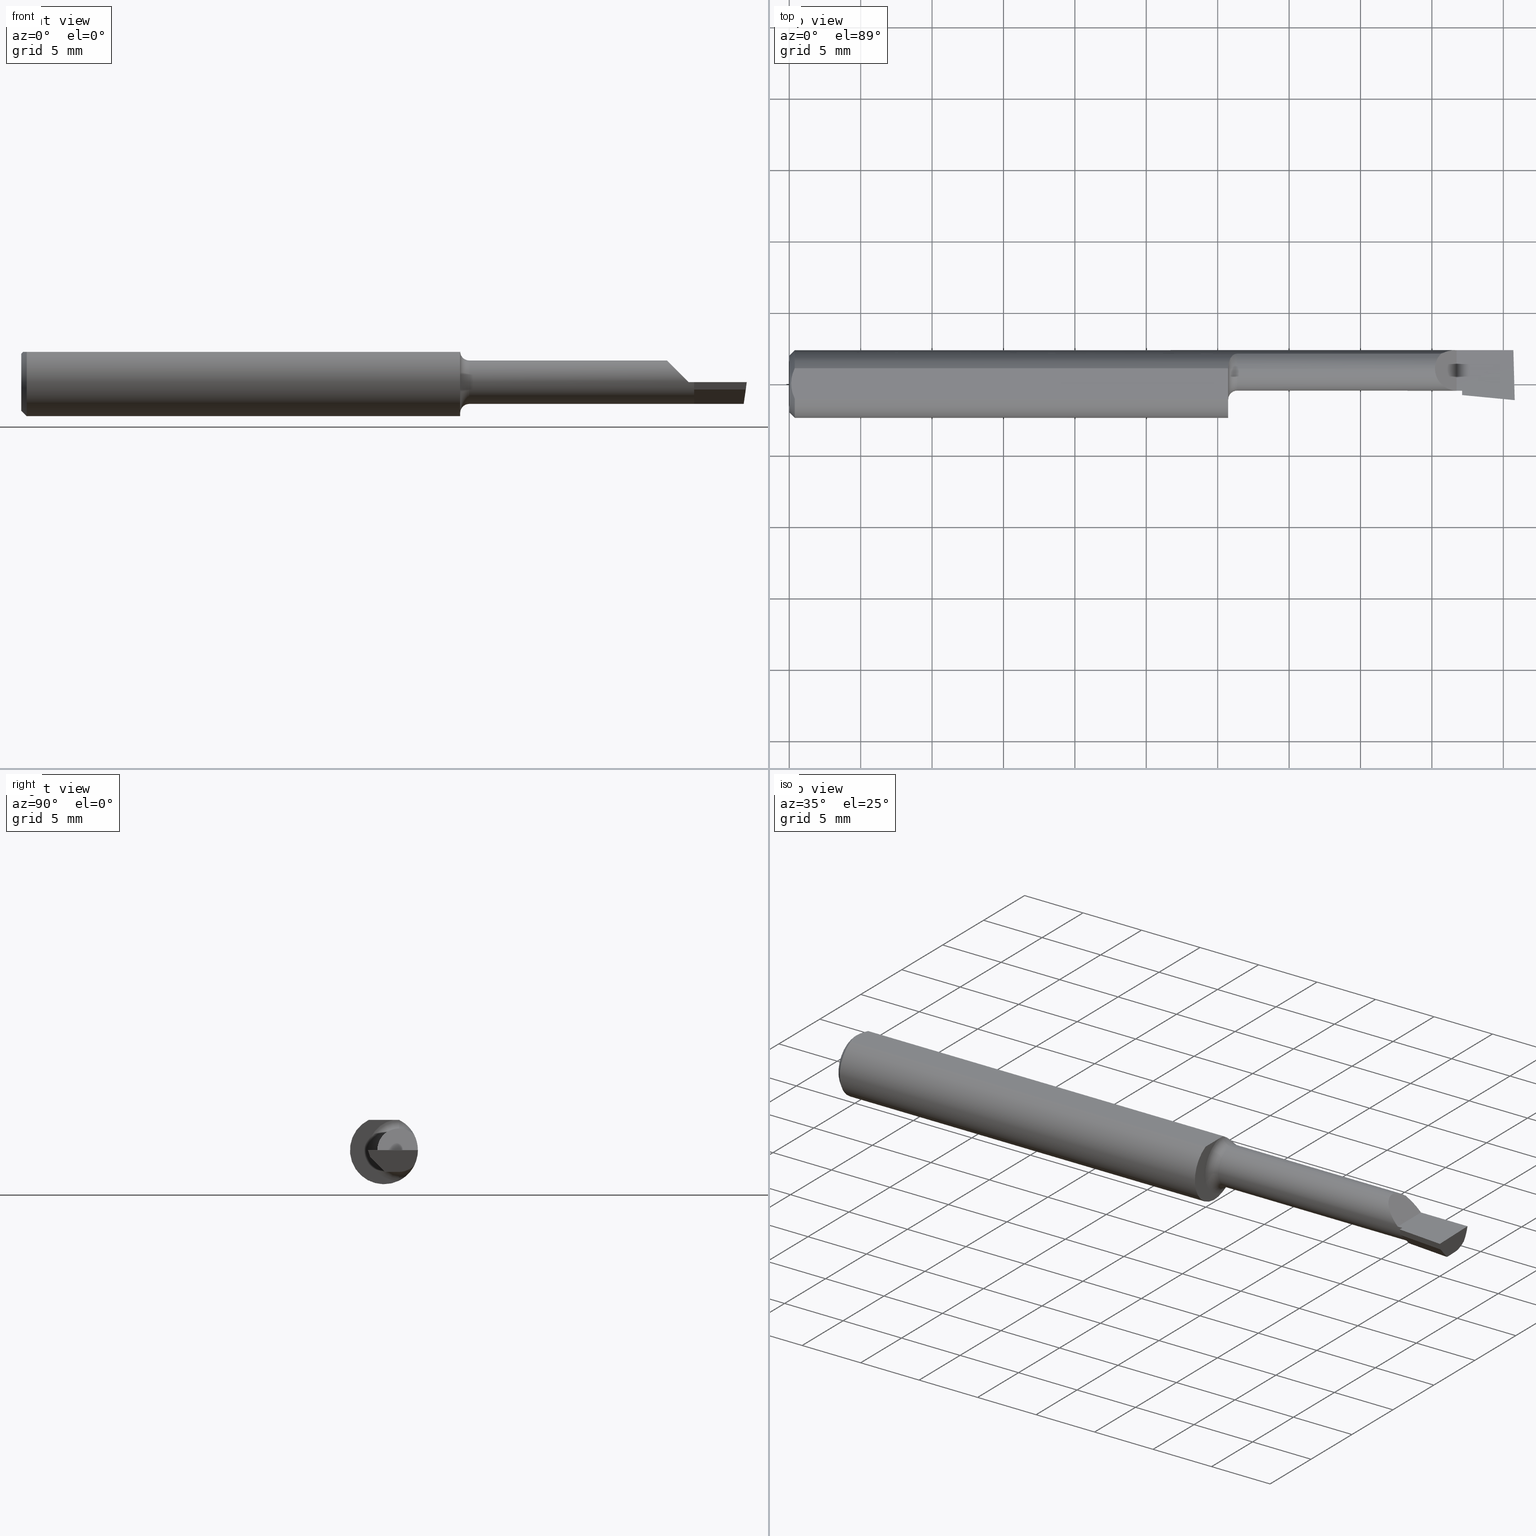
[diagram: canonical four-view strip — front | top / right | iso, engineering-drawing reading convention]
A machine part, canonical four-view strip (front | top / right | iso — engineering-drawing reading convention). The complete STEP part file that produces these views, byte-faithful:
ISO-10303-21;
HEADER;
FILE_DESCRIPTION (( 'STEP AP203' ),
    '1' );
FILE_NAME ('211914-LHB140750.STEP',
    '2024-08-23T16:21:57',
    ( '' ),
    ( '' ),
    'SwSTEP 2.0',
    'SolidWorks 2024',
    '' );
FILE_SCHEMA (( 'CONFIG_CONTROL_DESIGN' ));
ENDSEC;

DATA;
#1 = CARTESIAN_POINT ( 'NONE',  ( 1.234999999999999876, 0.04150000000000001604, 0.000000000000000000 ) ) ;
#2 = CARTESIAN_POINT ( 'NONE',  ( 1.213721006865827290, 0.06478644025684748842, 0.06776242552123297458 ) ) ;
#3 = ORIENTED_EDGE ( 'NONE', *, *, #233, .F. ) ;
#4 = CARTESIAN_POINT ( 'NONE',  ( 1.840000000000000080, -0.01840000000000013847, 1.959434878635766031E-17 ) ) ;
#5 = CARTESIAN_POINT ( 'NONE',  ( 0.000000000000000000, 0.000000000000000000, 0.000000000000000000 ) ) ;
#6 = EDGE_CURVE ( 'NONE', #421, #294, #569, .T. ) ;
#7 = CLOSED_SHELL ( 'NONE', ( #523, #177, #120, #675, #688, #181, #156, #393, #622, #424, #615, #81, #208, #570, #278, #218, #401, #17, #550 ) ) ;
#8 = ORIENTED_EDGE ( 'NONE', *, *, #196, .T. ) ;
#9 = PLANE ( 'NONE',  #29 ) ;
#10 = CARTESIAN_POINT ( 'NONE',  ( 1.210020127471513218, 0.04150000000000002298, -0.08389702020930182857 ) ) ;
#11 = ORIENTED_EDGE ( 'NONE', *, *, #283, .F. ) ;
#12 = CARTESIAN_POINT ( 'NONE',  ( 1.810264301876177706, 0.09002356847881784474, 0.02973569812382189162 ) ) ;
#13 = CARTESIAN_POINT ( 'NONE',  ( 1.210033712670300243, 0.04209513035969836975, 0.08360000000000000764 ) ) ;
#14 = ORIENTED_EDGE ( 'NONE', *, *, #377, .T. ) ;
#15 = PERSON_AND_ORGANIZATION ( #472, #88 ) ;
#16 = CARTESIAN_POINT ( 'NONE',  ( 0.01499999999999999598, 0.000000000000000000, 0.000000000000000000 ) ) ;
#17 = ADVANCED_FACE ( 'NONE', ( #262 ), #686, .F. ) ;
#18 = ORIENTED_EDGE ( 'NONE', *, *, #151, .F. ) ;
#19 = CARTESIAN_POINT ( 'NONE',  ( 1.796877448822106427, 0.08307469879518060429, 0.04312255117789316750 ) ) ;
#20 = EDGE_CURVE ( 'NONE', #174, #63, #630, .T. ) ;
#21 = ORIENTED_EDGE ( 'NONE', *, *, #20, .F. ) ;
#22 = APPROVAL_STATUS ( 'not_yet_approved' ) ;
#23 = CARTESIAN_POINT ( 'NONE',  ( 1.234999999999999876, 0.08307469879518031286, -0.04312255117789348668 ) ) ;
#24 = ORIENTED_EDGE ( 'NONE', *, *, #47, .F. ) ;
#25 = PERSON_AND_ORGANIZATION ( #472, #88 ) ;
#26 = CYLINDRICAL_SURFACE ( 'NONE', #152, 0.05990000000000003655 ) ;
#27 = VERTEX_POINT ( 'NONE', #529 ) ;
#28 = AXIS2_PLACEMENT_3D ( 'NONE', #92, #51, #624 ) ;
#29 = AXIS2_PLACEMENT_3D ( 'NONE', #121, #112, #491 ) ;
#30 = COORDINATED_UNIVERSAL_TIME_OFFSET ( 8, 0, .BEHIND. ) ;
#31 = CARTESIAN_POINT ( 'NONE',  ( 1.854999999999999982, 0.01528802250680429305, -0.05989999999999998104 ) ) ;
#32 = ORIENTED_EDGE ( 'NONE', *, *, #327, .F. ) ;
#33 = EDGE_CURVE ( 'NONE', #671, #87, #301, .T. ) ;
#34 = CARTESIAN_POINT ( 'NONE',  ( 0.000000000000000000, 0.04150000000000001604, -0.05990000000000003655 ) ) ;
#35 = VERTEX_POINT ( 'NONE', #689 ) ;
#36 = CARTESIAN_POINT ( 'NONE',  ( 1.780099999999999349, 0.006411392386148373826, 0.05990000000000003655 ) ) ;
#37 = CARTESIAN_POINT ( 'NONE',  ( 1.234999999999999876, 0.04150000000000000216, 0.000000000000000000 ) ) ;
#38 = B_SPLINE_CURVE_WITH_KNOTS ( 'NONE', 3,
 ( #10, #270, #443, #650 ),
 .UNSPECIFIED., .F., .F.,
 ( 4, 4 ),
 ( 0.001735506710063781152, 0.001793010945052093703 ),
 .UNSPECIFIED. ) ;
#39 = DIRECTION ( 'NONE',  ( 1.000000000000000000, 0.000000000000000000, 0.000000000000000000 ) ) ;
#40 = CC_DESIGN_APPROVAL ( #115, ( #640 ) ) ;
#41 = CARTESIAN_POINT ( 'NONE',  ( 1.234999999999999876, 0.04150000000000001604, 0.000000000000000000 ) ) ;
#42 = CARTESIAN_POINT ( 'NONE',  ( 5.659797890829564224E-31, -0.01840000000000002744, 1.030335658007946637E-15 ) ) ;
#43 = VERTEX_POINT ( 'NONE', #203 ) ;
#44 = ORIENTED_EDGE ( 'NONE', *, *, #455, .F. ) ;
#45 = CARTESIAN_POINT ( 'NONE',  ( 1.991661343449129040, 0.002129031820690719789, -0.05989999999999997410 ) ) ;
#46 = ORIENTED_EDGE ( 'NONE', *, *, #144, .F. ) ;
#47 = EDGE_CURVE ( 'NONE', #411, #426, #118, .T. ) ;
#48 = CARTESIAN_POINT ( 'NONE',  ( 0.009539353699420828961, -0.02875682547511369466, 0.08360000000000000764 ) ) ;
#49 = VECTOR ( 'NONE', #365, 39.37007874015748854 ) ;
#50 = AXIS2_PLACEMENT_3D ( 'NONE', #73, #397, #556 ) ;
#51 = DIRECTION ( 'NONE',  ( -1.000000000000000000, -0.000000000000000000, -0.000000000000000000 ) ) ;
#52 = EDGE_CURVE ( 'NONE', #63, #437, #683, .T. ) ;
#53 = FACE_OUTER_BOUND ( 'NONE', #55, .T. ) ;
#54 = PLANE ( 'NONE',  #319 ) ;
#55 = EDGE_LOOP ( 'NONE', ( #567, #490, #482, #326 ) ) ;
#56 = EDGE_CURVE ( 'NONE', #253, #98, #246, .T. ) ;
#57 = LINE ( 'NONE', #67, #248 ) ;
#58 = LINE ( 'NONE', #277, #188 ) ;
#59 = ORIENTED_EDGE ( 'NONE', *, *, #369, .T. ) ;
#60 = PLANE ( 'NONE',  #500 ) ;
#61 = FACE_OUTER_BOUND ( 'NONE', #389, .T. ) ;
#62 = CONICAL_SURFACE ( 'NONE', #447, 0.09360000000000001652, 0.7853981633974601584 ) ;
#63 = VERTEX_POINT ( 'NONE', #419 ) ;
#64 = APPLICATION_CONTEXT ( 'configuration controlled 3d designs of mechanical parts and assemblies' ) ;
#65 = CARTESIAN_POINT ( 'NONE',  ( 1.780099999999999349, 0.04150000000000000216, 0.05990000000000003655 ) ) ;
#66 = EDGE_LOOP ( 'NONE', ( #513, #182, #588 ) ) ;
#67 = CARTESIAN_POINT ( 'NONE',  ( 1.994878008415317039, -0.02004803678706337453, -0.03775007964733236021 ) ) ;
#68 = EDGE_CURVE ( 'NONE', #437, #609, #517, .T. ) ;
#69 = DIRECTION ( 'NONE',  ( 0.000000000000000000, 0.000000000000000000, -1.000000000000000000 ) ) ;
#70 = ORIENTED_EDGE ( 'NONE', *, *, #406, .T. ) ;
#71 =( BOUNDED_CURVE ( )  B_SPLINE_CURVE ( 3, ( #101, #153, #99, #470 ),
 .UNSPECIFIED., .F., .F. ) 
 B_SPLINE_CURVE_WITH_KNOTS ( ( 4, 4 ),
 ( 4.934903206476700888, 5.413699339028699598 ),
 .UNSPECIFIED. ) 
 CURVE ( )  GEOMETRIC_REPRESENTATION_ITEM ( )  RATIONAL_B_SPLINE_CURVE ( ( 1.000000000000000000, 0.9809872534005955602, 0.9809872534005955602, 1.000000000000000000 ) ) 
 REPRESENTATION_ITEM ( '' )  );
#72 = EDGE_CURVE ( 'NONE', #98, #253, #76, .T. ) ;
#73 = CARTESIAN_POINT ( 'NONE',  ( 0.000000000000000000, 0.000000000000000000, 0.000000000000000000 ) ) ;
#74 = CARTESIAN_POINT ( 'NONE',  ( 0.01499999999999999598, 0.04209513035969837669, 0.08360000000000000764 ) ) ;
#75 = ORIENTED_EDGE ( 'NONE', *, *, #585, .T. ) ;
#76 = CIRCLE ( 'NONE', #445, 0.07859999999999965625 ) ;
#77 = AXIS2_PLACEMENT_3D ( 'NONE', #1, #230, #386 ) ;
#78 = DATE_AND_TIME ( #552, #674 ) ;
#79 = DIRECTION ( 'NONE',  ( -1.000000000000000000, -0.000000000000000000, -0.000000000000000000 ) ) ;
#80 = ORIENTED_EDGE ( 'NONE', *, *, #259, .T. ) ;
#81 = ADVANCED_FACE ( 'NONE', ( #368 ), #420, .F. ) ;
#82 = DIRECTION ( 'NONE',  ( -1.000000000000000000, -0.000000000000000000, -0.000000000000000000 ) ) ;
#83 = ORIENTED_EDGE ( 'NONE', *, *, #6, .T. ) ;
#84 = PERSON_AND_ORGANIZATION_ROLE ( 'classification_officer' ) ;
#85 = DIRECTION ( 'NONE',  ( -1.000000000000000000, -0.000000000000000000, -0.000000000000000000 ) ) ;
#86 = EDGE_CURVE ( 'NONE', #643, #192, #345, .T. ) ;
#87 = VERTEX_POINT ( 'NONE', #628 ) ;
#88 = ORGANIZATION ( 'UNSPECIFIED', 'UNSPECIFIED', '' ) ;
#89 = CARTESIAN_POINT ( 'NONE',  ( 1.210020127471513218, 0.04150000000000002298, -0.08389702020930182857 ) ) ;
#90 = ORIENTED_EDGE ( 'NONE', *, *, #33, .F. ) ;
#91 = FACE_OUTER_BOUND ( 'NONE', #546, .T. ) ;
#92 = CARTESIAN_POINT ( 'NONE',  ( 1.234999999999999876, 0.04150000000000000216, 0.000000000000000000 ) ) ;
#93 = CARTESIAN_POINT ( 'NONE',  ( 1.840000000000000080, 0.09359999999999982223, 1.959434878635766031E-17 ) ) ;
#94 = LINE ( 'NONE', #149, #485 ) ;
#95 = AXIS2_PLACEMENT_3D ( 'NONE', #16, #117, #593 ) ;
#96 = CARTESIAN_POINT ( 'NONE',  ( 1.234999999999999876, 0.08307469879517995204, 0.04312255117789382669 ) ) ;
#97 = CARTESIAN_POINT ( 'NONE',  ( 1.210033822879743814, 0.04159918775969423388, 0.08360000000000000764 ) ) ;
#98 = VERTEX_POINT ( 'NONE', #524 ) ;
#99 = CARTESIAN_POINT ( 'NONE',  ( 1.992878167367474918, 0.09002356847881788637, -0.02973569812382179794 ) ) ;
#100 = CARTESIAN_POINT ( 'NONE',  ( 0.000000000000000000, 0.04150000000000000216, 0.05990000000000003655 ) ) ;
#101 = CARTESIAN_POINT ( 'NONE',  ( 1.996303070958813874, 0.09359999999999991938, -6.619415695412894900E-17 ) ) ;
#102 = DIRECTION ( 'NONE',  ( -0.9953961983671787417, 0.09584575252022423109, -1.732874166575655028E-17 ) ) ;
#103 = EDGE_CURVE ( 'NONE', #497, #27, #146, .T. ) ;
#104 = ORIENTED_EDGE ( 'NONE', *, *, #377, .F. ) ;
#105 = LINE ( 'NONE', #641, #107 ) ;
#106 = VECTOR ( 'NONE', #207, 39.37007874015748143 ) ;
#107 = VECTOR ( 'NONE', #442, 39.37007874015748143 ) ;
#108 = CARTESIAN_POINT ( 'NONE',  ( 1.223723886093657010, 0.07921817987507871750, 0.04991299092652205088 ) ) ;
#109 = CARTESIAN_POINT ( 'NONE',  ( 1.840000000000000080, -0.2500000000000000555, 1.959434878635766031E-17 ) ) ;
#110 = DIRECTION ( 'NONE',  ( -1.000000000000000000, -0.000000000000000000, -0.000000000000000000 ) ) ;
#111 = VERTEX_POINT ( 'NONE', #159 ) ;
#112 = DIRECTION ( 'NONE',  ( 0.000000000000000000, -1.189000693621284344E-16, -1.000000000000000000 ) ) ;
#113 = CARTESIAN_POINT ( 'NONE',  ( 1.210661035553191267, 0.05185656404701165234, 0.07811662714583204881 ) ) ;
#114 = ORIENTED_EDGE ( 'NONE', *, *, #141, .T. ) ;
#115 = APPROVAL ( #613, 'UNSPECIFIED' ) ;
#116 = CARTESIAN_POINT ( 'NONE',  ( 1.796877448822106427, 0.08307469879518060429, 0.04312255117789316750 ) ) ;
#117 = DIRECTION ( 'NONE',  ( 1.000000000000000000, 0.000000000000000000, 0.000000000000000000 ) ) ;
#118 = CIRCLE ( 'NONE', #538, 0.05990000000000008512 ) ;
#119 = ORIENTED_EDGE ( 'NONE', *, *, #56, .F. ) ;
#120 = ADVANCED_FACE ( 'NONE', ( #371 ), #186, .F. ) ;
#121 = CARTESIAN_POINT ( 'NONE',  ( 2.000000000000000000, 0.1436000000000000332, 0.08359999999999999376 ) ) ;
#122 = CARTESIAN_POINT ( 'NONE',  ( 1.219277238843510691, 0.07518688180261705323, 0.05595855205958146644 ) ) ;
#123 = ORIENTED_EDGE ( 'NONE', *, *, #124, .F. ) ;
#124 = EDGE_CURVE ( 'NONE', #294, #35, #94, .T. ) ;
#125 = ADVANCED_BREP_SHAPE_REPRESENTATION ( '211914-LHB140750', ( #225, #50 ), #387 ) ;
#126 = CALENDAR_DATE ( 2024, 23, 8 ) ;
#127 = CARTESIAN_POINT ( 'NONE',  ( 0.009492654797564338900, 0.02859466010166627700, 0.08360000000000000764 ) ) ;
#128 = ORIENTED_EDGE ( 'NONE', *, *, #449, .T. ) ;
#129 =( NAMED_UNIT ( * ) SI_UNIT ( $, .STERADIAN. ) SOLID_ANGLE_UNIT ( ) );
#130 = CARTESIAN_POINT ( 'NONE',  ( 1.217076397983111180, 0.07187891021191449015, -0.06019546731975726483 ) ) ;
#131 = PRODUCT_DEFINITION_SHAPE ( 'NONE', 'NONE',  #364 ) ;
#132 = ORIENTED_EDGE ( 'NONE', *, *, #6, .F. ) ;
#133 = AXIS2_PLACEMENT_3D ( 'NONE', #526, #263, #473 ) ;
#134 = FACE_OUTER_BOUND ( 'NONE', #135, .T. ) ;
#135 = EDGE_LOOP ( 'NONE', ( #247, #542, #591, #616 ) ) ;
#136 = APPROVAL_DATE_TIME ( #402, #245 ) ;
#137 = CARTESIAN_POINT ( 'NONE',  ( 1.209999999999999742, 0.02916612216507176447, 0.08360000000000000764 ) ) ;
#138 = ORIENTED_EDGE ( 'NONE', *, *, #648, .F. ) ;
#139 = CARTESIAN_POINT ( 'NONE',  ( 1.225354605856553203, 0.08039319987159025682, -0.04797642756495561905 ) ) ;
#140 = ORIENTED_EDGE ( 'NONE', *, *, #477, .T. ) ;
#141 = EDGE_CURVE ( 'NONE', #450, #27, #626, .T. ) ;
#142 = CARTESIAN_POINT ( 'NONE',  ( 1.234999999999999876, 0.04150000000000002298, -0.05990000000000008512 ) ) ;
#143 = VERTEX_POINT ( 'NONE', #496 ) ;
#144 = EDGE_CURVE ( 'NONE', #294, #643, #544, .T. ) ;
#145 = DIRECTION ( 'NONE',  ( -1.000000000000000000, 0.000000000000000000, 5.493159289247768307E-16 ) ) ;
#146 = LINE ( 'NONE', #681, #617 ) ;
#147 = CARTESIAN_POINT ( 'NONE',  ( 0.005000000000000236026, 1.025183009042025117E-17, 0.08360000000000000764 ) ) ;
#148 = APPLICATION_CONTEXT ( 'configuration controlled 3d designs of mechanical parts and assemblies' ) ;
#149 = CARTESIAN_POINT ( 'NONE',  ( 1.854999999999999982, -0.04216482923734049537, -0.001704712032923590441 ) ) ;
#150 = ORIENTED_EDGE ( 'NONE', *, *, #317, .T. ) ;
#151 = EDGE_CURVE ( 'NONE', #143, #302, #38, .T. ) ;
#152 = AXIS2_PLACEMENT_3D ( 'NONE', #511, #82, #557 ) ;
#153 = CARTESIAN_POINT ( 'NONE',  ( 1.994517249006380943, 0.09360000000000004428, -0.01508292493422510976 ) ) ;
#154 = CARTESIAN_POINT ( 'NONE',  ( 0.01499999999999999598, 0.000000000000000000, 0.000000000000000000 ) ) ;
#155 = DIRECTION ( 'NONE',  ( 0.000000000000000000, -0.3019700370129919098, 0.9533174165755979867 ) ) ;
#156 = ADVANCED_FACE ( 'NONE', ( #481 ), #475, .T. ) ;
#157 = DIRECTION ( 'NONE',  ( 0.000000000000000000, 0.000000000000000000, 1.000000000000000000 ) ) ;
#158 = DIRECTION ( 'NONE',  ( 1.000000000000000000, 0.000000000000000000, 0.000000000000000000 ) ) ;
#159 = CARTESIAN_POINT ( 'NONE',  ( 1.209999999999999964, 0.02669966216601753206, 0.08360000000000000764 ) ) ;
#160 = AXIS2_PLACEMENT_3D ( 'NONE', #403, #85, #352 ) ;
#161 = CC_DESIGN_APPROVAL ( #417, ( #364 ) ) ;
#162 = ORIENTED_EDGE ( 'NONE', *, *, #632, .T. ) ;
#163 = CARTESIAN_POINT ( 'NONE',  ( 1.840000000000000080, -0.2500000000000000555, 1.959434878635766031E-17 ) ) ;
#164 = DIRECTION ( 'NONE',  ( -0.000000000000000000, 1.000000000000000000, -2.155470096071024451E-16 ) ) ;
#165 = VERTEX_POINT ( 'NONE', #587 ) ;
#166 = CC_DESIGN_DATE_AND_TIME_ASSIGNMENT ( #666, #663, ( #364 ) ) ;
#167 = DIRECTION ( 'NONE',  ( -0.000000000000000000, 1.000000000000000000, -0.000000000000000000 ) ) ;
#168 = CARTESIAN_POINT ( 'NONE',  ( 1.990606621161869816, 0.04149999999999999523, -0.05989999999999998798 ) ) ;
#169 = ORIENTED_EDGE ( 'NONE', *, *, #580, .T. ) ;
#170 = DIRECTION ( 'NONE',  ( 0.000000000000000000, 0.000000000000000000, -1.000000000000000000 ) ) ;
#171 = CARTESIAN_POINT ( 'NONE',  ( 1.854999999999999982, -0.01839999999999999969, 1.030335658007946243E-15 ) ) ;
#172 = EDGE_CURVE ( 'NONE', #605, #411, #483, .T. ) ;
#173 = CC_DESIGN_SECURITY_CLASSIFICATION ( #640, ( #553 ) ) ;
#174 = VERTEX_POINT ( 'NONE', #65 ) ;
#175 = APPROVAL_ROLE ( '' ) ;
#176 = CARTESIAN_POINT ( 'NONE',  ( 1.209999999999999964, -0.04340000000000008434, 0.000000000000000000 ) ) ;
#177 = ADVANCED_FACE ( 'NONE', ( #61 ), #383, .T. ) ;
#178 = VERTEX_POINT ( 'NONE', #280 ) ;
#179 = PERSON_AND_ORGANIZATION ( #472, #88 ) ;
#180 = DIRECTION ( 'NONE',  ( 0.000000000000000000, -0.3019700370129919098, 0.9533174165755979867 ) ) ;
#181 = ADVANCED_FACE ( 'NONE', ( #492 ), #439, .F. ) ;
#182 = ORIENTED_EDGE ( 'NONE', *, *, #355, .F. ) ;
#183 = B_SPLINE_CURVE_WITH_KNOTS ( 'NONE', 3,
 ( #23, #614, #554, #139, #608, #241, #130, #454, #354, #564, #501, #89 ),
 .UNSPECIFIED., .F., .F.,
 ( 4, 2, 2, 2, 2, 4 ),
 ( 1.963546462201886234E-07, 0.0002171101490734151924, 0.0004340239435006102288, 0.0008678515323550006809, 0.001301679121209391079, 0.001735506710063781152 ),
 .UNSPECIFIED. ) ;
#184 = PERSON_AND_ORGANIZATION ( #472, #88 ) ;
#185 = CYLINDRICAL_SURFACE ( 'NONE', #458, 0.09360000000000001652 ) ;
#186 = TOROIDAL_SURFACE ( 'NONE', #563, 0.08490000000000010039, 0.02499999999999986955 ) ;
#187 = ORIENTED_EDGE ( 'NONE', *, *, #198, .F. ) ;
#188 = VECTOR ( 'NONE', #489, 39.37007874015748143 ) ;
#189 = LOCAL_TIME ( 9, 21, 56.00000000000000000, #340 ) ;
#190 = COORDINATED_UNIVERSAL_TIME_OFFSET ( 8, 0, .BEHIND. ) ;
#191 = CARTESIAN_POINT ( 'NONE',  ( 1.780099999999999349, 0.05720488466913994929, 0.05990000000000002961 ) ) ;
#192 = VERTEX_POINT ( 'NONE', #171 ) ;
#193 = DATE_TIME_ROLE ( 'classification_date' ) ;
#194 = CARTESIAN_POINT ( 'NONE',  ( 0.005000000000000225618, 0.007308422719211825694, 0.08360000000000000764 ) ) ;
#195 = ORIENTED_EDGE ( 'NONE', *, *, #327, .T. ) ;
#196 = EDGE_CURVE ( 'NONE', #302, #165, #410, .T. ) ;
#197 = CARTESIAN_POINT ( 'NONE',  ( 2.000000000000000000, 0.04149999999999999523, -0.05989999999999998798 ) ) ;
#198 = EDGE_CURVE ( 'NONE', #605, #274, #545, .T. ) ;
#199 = ORIENTED_EDGE ( 'NONE', *, *, #684, .T. ) ;
#200 = AXIS2_PLACEMENT_3D ( 'NONE', #154, #527, #366 ) ;
#201 = CIRCLE ( 'NONE', #575, 0.02499999999999986955 ) ;
#202 = FACE_OUTER_BOUND ( 'NONE', #459, .T. ) ;
#203 = CARTESIAN_POINT ( 'NONE',  ( 1.996303070958813874, 0.09359999999999991938, -6.619415695412894900E-17 ) ) ;
#204 = CARTESIAN_POINT ( 'NONE',  ( 2.000000000000000000, -0.2500000000000000555, -6.829619984160658046E-17 ) ) ;
#205 = DIRECTION ( 'NONE',  ( 0.000000000000000000, 0.000000000000000000, 1.000000000000000000 ) ) ;
#206 = EDGE_CURVE ( 'NONE', #27, #437, #661, .T. ) ;
#207 = DIRECTION ( 'NONE',  ( -1.000000000000000000, -0.000000000000000000, -0.000000000000000000 ) ) ;
#208 = ADVANCED_FACE ( 'NONE', ( #285 ), #54, .F. ) ;
#209 = AXIS2_PLACEMENT_3D ( 'NONE', #349, #266, #155 ) ;
#210 = APPROVAL_PERSON_ORGANIZATION ( #405, #115, #175 ) ;
#211 = CARTESIAN_POINT ( 'NONE',  ( 0.000000000000000000, 0.04150000000000000216, 0.000000000000000000 ) ) ;
#212 = DIRECTION ( 'NONE',  ( -1.000000000000000000, -0.000000000000000000, -0.000000000000000000 ) ) ;
#213 =( BOUNDED_CURVE ( )  B_SPLINE_CURVE ( 3, ( #19, #300, #191, #504 ),
 .UNSPECIFIED., .F., .T. ) 
 B_SPLINE_CURVE_WITH_KNOTS ( ( 4, 4 ),
 ( 5.516060229395662873, 6.283185307179586232 ),
 .UNSPECIFIED. ) 
 CURVE ( )  GEOMETRIC_REPRESENTATION_ITEM ( )  RATIONAL_B_SPLINE_CURVE ( ( 1.000000000000000000, 0.9515582177473694836, 0.9515582177473694836, 1.000000000000000000 ) ) 
 REPRESENTATION_ITEM ( '' )  );
#214 = ORIENTED_EDGE ( 'NONE', *, *, #103, .F. ) ;
#215 = DIRECTION ( 'NONE',  ( 0.1199690778467074476, -0.3102690083707257407, 0.9430485474275739355 ) ) ;
#216 = CARTESIAN_POINT ( 'NONE',  ( 1.848806480742781089, -0.02350657842466757214, -0.02000000000000006981 ) ) ;
#217 =( BOUNDED_CURVE ( )  B_SPLINE_CURVE ( 3, ( #596, #12, #687, #427 ),
 .UNSPECIFIED., .F., .F. ) 
 B_SPLINE_CURVE_WITH_KNOTS ( ( 4, 4 ),
 ( 1.092000194242895628, 1.570796326794896558 ),
 .UNSPECIFIED. ) 
 CURVE ( )  GEOMETRIC_REPRESENTATION_ITEM ( )  RATIONAL_B_SPLINE_CURVE ( ( 1.000000000000000000, 0.9809872534005954492, 0.9809872534005954492, 1.000000000000000000 ) ) 
 REPRESENTATION_ITEM ( '' )  );
#218 = ADVANCED_FACE ( 'NONE', ( #430 ), #642, .F. ) ;
#219 = FACE_OUTER_BOUND ( 'NONE', #408, .T. ) ;
#220 = DIRECTION ( 'NONE',  ( -0.000000000000000000, 0.000000000000000000, 1.000000000000000000 ) ) ;
#221 = ORIENTED_EDGE ( 'NONE', *, *, #465, .F. ) ;
#222 = AXIS2_PLACEMENT_3D ( 'NONE', #5, #582, #69 ) ;
#223 = CC_DESIGN_PERSON_AND_ORGANIZATION_ASSIGNMENT ( #495, #84, ( #640 ) ) ;
#224 = CARTESIAN_POINT ( 'NONE',  ( 1.209999999999999964, 0.000000000000000000, 0.000000000000000000 ) ) ;
#225 = MANIFOLD_SOLID_BREP ( 'Extrude7', #7 ) ;
#226 = ORIENTED_EDGE ( 'NONE', *, *, #198, .T. ) ;
#227 = CARTESIAN_POINT ( 'NONE',  ( 1.234999999999999876, 0.04150000000000000216, 0.000000000000000000 ) ) ;
#228 = CARTESIAN_POINT ( 'NONE',  ( 1.217169981117899757, 0.07201923175886847106, 0.06001882546782391636 ) ) ;
#229 = EDGE_LOOP ( 'NONE', ( #80, #11, #298 ) ) ;
#230 = DIRECTION ( 'NONE',  ( -1.000000000000000000, -0.000000000000000000, -0.000000000000000000 ) ) ;
#231 = CARTESIAN_POINT ( 'NONE',  ( 0.000000000000000000, 0.04150000000000000216, 0.000000000000000000 ) ) ;
#232 = EDGE_LOOP ( 'NONE', ( #330, #456, #114, #214, #384, #679, #221 ) ) ;
#233 = EDGE_CURVE ( 'NONE', #444, #43, #58, .T. ) ;
#234 = CARTESIAN_POINT ( 'NONE',  ( 1.991479316373666597, 0.08307469879518067368, -0.04312255117789308423 ) ) ;
#235 = AXIS2_PLACEMENT_3D ( 'NONE', #216, #316, #425 ) ;
#236 = ORIENTED_EDGE ( 'NONE', *, *, #334, .T. ) ;
#237 = COORDINATED_UNIVERSAL_TIME_OFFSET ( 8, 0, .BEHIND. ) ;
#238 = CARTESIAN_POINT ( 'NONE',  ( 1.209999999999999964, 0.03946024096385525315, -0.08487549341873944220 ) ) ;
#239 = EDGE_LOOP ( 'NONE', ( #376, #128, #502, #452, #342, #8, #347, #90, #350, #282, #505, #639, #199 ) ) ;
#240 = CALENDAR_DATE ( 2024, 23, 8 ) ;
#241 = CARTESIAN_POINT ( 'NONE',  ( 1.219237437666585544, 0.07513599091568971822, -0.05602756047418890745 ) ) ;
#242 = ORIENTED_EDGE ( 'NONE', *, *, #449, .F. ) ;
#243 =( CONVERSION_BASED_UNIT ( 'INCH', #435 ) LENGTH_UNIT ( ) NAMED_UNIT ( #318 ) );
#244 = LINE ( 'NONE', #34, #652 ) ;
#245 = APPROVAL ( #446, 'UNSPECIFIED' ) ;
#246 = CIRCLE ( 'NONE', #256, 0.07859999999999965625 ) ;
#247 = ORIENTED_EDGE ( 'NONE', *, *, #455, .T. ) ;
#248 = VECTOR ( 'NONE', #589, 39.37007874015748854 ) ;
#249 = CALENDAR_DATE ( 2024, 23, 8 ) ;
#250 = CARTESIAN_POINT ( 'NONE',  ( 1.210033822879743814, 0.03903342675882736507, 0.08360000000000000764 ) ) ;
#251 = ORIENTED_EDGE ( 'NONE', *, *, #428, .T. ) ;
#252 = DIRECTION ( 'NONE',  ( 0.000000000000000000, 1.000000000000000000, -1.189000693621284344E-16 ) ) ;
#253 = VERTEX_POINT ( 'NONE', #664 ) ;
#254 = DIRECTION ( 'NONE',  ( -1.000000000000000000, -0.000000000000000000, -0.000000000000000000 ) ) ;
#255 = EDGE_LOOP ( 'NONE', ( #562, #464 ) ) ;
#256 = AXIS2_PLACEMENT_3D ( 'NONE', #576, #264, #205 ) ;
#257 = LOCAL_TIME ( 9, 21, 56.00000000000000000, #190 ) ;
#258 = CARTESIAN_POINT ( 'NONE',  ( 0.005000000000000227353, -0.007328888879231044290, 0.08360000000000000764 ) ) ;
#259 = EDGE_CURVE ( 'NONE', #302, #111, #265, .T. ) ;
#260 = DIRECTION ( 'NONE',  ( -1.000000000000000000, -0.000000000000000000, -0.000000000000000000 ) ) ;
#261 = CARTESIAN_POINT ( 'NONE',  ( 1.780099999999999349, 0.04150000000000000216, 0.05990000000000003655 ) ) ;
#262 = FACE_OUTER_BOUND ( 'NONE', #651, .T. ) ;
#263 = DIRECTION ( 'NONE',  ( -1.000000000000000000, -0.000000000000000000, -0.000000000000000000 ) ) ;
#264 = DIRECTION ( 'NONE',  ( -1.000000000000000000, -0.000000000000000000, -0.000000000000000000 ) ) ;
#265 = CIRCLE ( 'NONE', #160, 0.08490000000000010039 ) ;
#266 = DIRECTION ( 'NONE',  ( 0.09140971883575739476, 0.9493262270931227542, 0.3007057995042740073 ) ) ;
#267 = CARTESIAN_POINT ( 'NONE',  ( 1.854999999999999982, 0.04150000000000000216, 0.000000000000000000 ) ) ;
#268 = CARTESIAN_POINT ( 'NONE',  ( 1.991479316373666597, 0.08307469879518067368, -0.04312255117789308423 ) ) ;
#269 = EDGE_CURVE ( 'NONE', #609, #174, #213, .T. ) ;
#270 = CARTESIAN_POINT ( 'NONE',  ( 1.210006719116742735, 0.04082489400077262548, -0.08423096411932441685 ) ) ;
#271 = ORIENTED_EDGE ( 'NONE', *, *, #598, .T. ) ;
#272 = LINE ( 'NONE', #163, #685 ) ;
#273 = CARTESIAN_POINT ( 'NONE',  ( 1.854999999999999982, 0.04149999999999999523, -0.05989999999999998798 ) ) ;
#274 = VERTEX_POINT ( 'NONE', #293 ) ;
#275 = FACE_OUTER_BOUND ( 'NONE', #232, .T. ) ;
#276 = LOCAL_TIME ( 9, 21, 56.00000000000000000, #390 ) ;
#277 = CARTESIAN_POINT ( 'NONE',  ( 5.659797890829564224E-31, 0.09359999999999998876, 1.030335658007946637E-15 ) ) ;
#278 = ADVANCED_FACE ( 'NONE', ( #548 ), #26, .T. ) ;
#279 = ORIENTED_EDGE ( 'NONE', *, *, #477, .F. ) ;
#280 = CARTESIAN_POINT ( 'NONE',  ( 1.854999999999999982, -0.03043808801135738235, 1.030845766359249298E-15 ) ) ;
#281 = PRODUCT_RELATED_PRODUCT_CATEGORY ( 'detail', '', ( #594 ) ) ;
#282 = ORIENTED_EDGE ( 'NONE', *, *, #103, .T. ) ;
#283 = EDGE_CURVE ( 'NONE', #165, #111, #297, .T. ) ;
#284 = CARTESIAN_POINT ( 'NONE',  ( 0.01499999999999999598, 0.000000000000000000, 0.000000000000000000 ) ) ;
#285 = FACE_OUTER_BOUND ( 'NONE', #229, .T. ) ;
#286 = ORIENTED_EDGE ( 'NONE', *, *, #86, .F. ) ;
#287 = APPROVAL_DATE_TIME ( #547, #115 ) ;
#288 = CARTESIAN_POINT ( 'NONE',  ( 1.854999999999999982, -0.03134994704389333642, 0.002878732955684636195 ) ) ;
#289 = CIRCLE ( 'NONE', #133, 0.09360000000000001652 ) ;
#290 = AXIS2_PLACEMENT_3D ( 'NONE', #227, #592, #438 ) ;
#291 = ORIENTED_EDGE ( 'NONE', *, *, #428, .F. ) ;
#292 =( NAMED_UNIT ( * ) PLANE_ANGLE_UNIT ( ) SI_UNIT ( $, .RADIAN. ) );
#293 = CARTESIAN_POINT ( 'NONE',  ( 1.990606621161869816, 0.04149999999999999523, -0.05989999999999998798 ) ) ;
#294 = VERTEX_POINT ( 'NONE', #31 ) ;
#295 = PERSON_AND_ORGANIZATION_ROLE ( 'design_owner' ) ;
#296 = CC_DESIGN_PERSON_AND_ORGANIZATION_ASSIGNMENT ( #25, #607, ( #364 ) ) ;
#297 = LINE ( 'NONE', #398, #638 ) ;
#298 = ORIENTED_EDGE ( 'NONE', *, *, #196, .F. ) ;
#299 = DATE_AND_TIME ( #249, #346 ) ;
#300 = CARTESIAN_POINT ( 'NONE',  ( 1.785977184218891844, 0.07176861043311219546, 0.05402281578110754157 ) ) ;
#301 = CIRCLE ( 'NONE', #200, 0.09360000000000001652 ) ;
#302 = VERTEX_POINT ( 'NONE', #238 ) ;
#303 = LINE ( 'NONE', #514, #606 ) ;
#304 = ORIENTED_EDGE ( 'NONE', *, *, #33, .T. ) ;
#305 = CARTESIAN_POINT ( 'NONE',  ( 1.854999999999999982, -0.04043808801135707204, 0.000000000000000000 ) ) ;
#306 = EDGE_LOOP ( 'NONE', ( #18, #162, #599, #138, #484, #515 ) ) ;
#307 = EDGE_CURVE ( 'NONE', #111, #450, #577, .T. ) ;
#308 = CARTESIAN_POINT ( 'NONE',  ( 0.000000000000000000, -0.04209513035969835587, 0.08360000000000000764 ) ) ;
#309 = CARTESIAN_POINT ( 'NONE',  ( 1.996167230253800939, 0.001695164268982989400, -0.05989999999999998104 ) ) ;
#310 = VECTOR ( 'NONE', #409, 39.37007874015748854 ) ;
#311 = CARTESIAN_POINT ( 'NONE',  ( 1.210033822879743814, 0.04150000000000001604, 0.08360000000000000764 ) ) ;
#312 = CARTESIAN_POINT ( 'NONE',  ( 1.210033804492674614, 0.04179756391332097032, 0.08360000000000000764 ) ) ;
#313 = LINE ( 'NONE', #361, #310 ) ;
#314 = ORIENTED_EDGE ( 'NONE', *, *, #503, .F. ) ;
#315 = CARTESIAN_POINT ( 'NONE',  ( 0.01499999999999999944, -0.04209513035969835587, 0.08360000000000000764 ) ) ;
#316 = DIRECTION ( 'NONE',  ( 0.06836202603457079696, 0.7099667855717585185, 0.7009092642998474565 ) ) ;
#317 = EDGE_CURVE ( 'NONE', #253, #671, #507, .T. ) ;
#318 = DIMENSIONAL_EXPONENTS ( 1.000000000000000000, 0.000000000000000000, 0.000000000000000000, 0.000000000000000000, 0.000000000000000000, 0.000000000000000000, 0.000000000000000000 ) ;
#319 = AXIS2_PLACEMENT_3D ( 'NONE', #176, #322, #220 ) ;
#320 = APPROVAL_PERSON_ORGANIZATION ( #603, #417, #343 ) ;
#321 = CARTESIAN_POINT ( 'NONE',  ( 1.854999999999999982, 0.04149999999999999523, -0.05990000000000000185 ) ) ;
#322 = DIRECTION ( 'NONE',  ( -1.000000000000000000, 0.000000000000000000, -0.000000000000000000 ) ) ;
#323 = ORIENTED_EDGE ( 'NONE', *, *, #68, .F. ) ;
#324 = CARTESIAN_POINT ( 'NONE',  ( 1.997455717880613157, -0.03781987198395966171, -0.02000000000000006981 ) ) ;
#325 = CARTESIAN_POINT ( 'NONE',  ( 1.990185897653016234, 0.05720488466914001868, -0.05990000000000005043 ) ) ;
#326 = ORIENTED_EDGE ( 'NONE', *, *, #206, .F. ) ;
#327 = EDGE_CURVE ( 'NONE', #643, #426, #244, .T. ) ;
#328 = LINE ( 'NONE', #540, #422 ) ;
#329 = CARTESIAN_POINT ( 'NONE',  ( 1.229521451227007622, 0.08233651528522353824, 0.04455777109850386775 ) ) ;
#330 = ORIENTED_EDGE ( 'NONE', *, *, #283, .T. ) ;
#331 = CARTESIAN_POINT ( 'NONE',  ( 0.01499999999999999598, 0.000000000000000000, -0.09360000000000001652 ) ) ;
#332 = APPROVAL_PERSON_ORGANIZATION ( #453, #245, #600 ) ;
#333 = CARTESIAN_POINT ( 'NONE',  ( 1.545000000000000151, 0.08307469879518067368, -0.04312255117789308423 ) ) ;
#334 = EDGE_CURVE ( 'NONE', #612, #497, #381, .T. ) ;
#335 = ORIENTED_EDGE ( 'NONE', *, *, #20, .T. ) ;
#336 =( BOUNDED_CURVE ( )  B_SPLINE_CURVE ( 3, ( #261, #36, #360, #625 ),
 .UNSPECIFIED., .F., .F. ) 
 B_SPLINE_CURVE_WITH_KNOTS ( ( 4, 4 ),
 ( 0.000000000000000000, 1.570796326794896780 ),
 .UNSPECIFIED. ) 
 CURVE ( )  GEOMETRIC_REPRESENTATION_ITEM ( )  RATIONAL_B_SPLINE_CURVE ( ( 1.000000000000000000, 0.8047378541243649375, 0.8047378541243649375, 1.000000000000000000 ) ) 
 REPRESENTATION_ITEM ( '' )  );
#337 = CARTESIAN_POINT ( 'NONE',  ( 0.005000000000000236026, 1.025183009042025117E-17, 0.08360000000000000764 ) ) ;
#338 = CARTESIAN_POINT ( 'NONE',  ( 1.234999999999999876, 0.08307469879517995204, 0.04312255117789382669 ) ) ;
#339 = ORIENTED_EDGE ( 'NONE', *, *, #503, .T. ) ;
#340 = COORDINATED_UNIVERSAL_TIME_OFFSET ( 8, 0, .BEHIND. ) ;
#341 = DIRECTION ( 'NONE',  ( -1.000000000000000000, -0.000000000000000000, -0.000000000000000000 ) ) ;
#342 = ORIENTED_EDGE ( 'NONE', *, *, #151, .T. ) ;
#343 = APPROVAL_ROLE ( '' ) ;
#344 = CARTESIAN_POINT ( 'NONE',  ( 1.210027419345087285, 0.03656676420725885057, 0.08359999999999997988 ) ) ;
#345 = CIRCLE ( 'NONE', #498, 0.05990000000000000185 ) ;
#346 = LOCAL_TIME ( 9, 21, 56.00000000000000000, #30 ) ;
#347 = ORIENTED_EDGE ( 'NONE', *, *, #465, .T. ) ;
#348 = CC_DESIGN_PERSON_AND_ORGANIZATION_ASSIGNMENT ( #15, #559, ( #553 ) ) ;
#349 = CARTESIAN_POINT ( 'NONE',  ( 1.848806480742781089, -0.02350657842466757214, -0.02000000000000006981 ) ) ;
#350 = ORIENTED_EDGE ( 'NONE', *, *, #460, .F. ) ;
#351 = PERSON_AND_ORGANIZATION_ROLE ( 'creator' ) ;
#352 = DIRECTION ( 'NONE',  ( 0.000000000000000000, 0.000000000000000000, 1.000000000000000000 ) ) ;
#353 = ORIENTED_EDGE ( 'NONE', *, *, #598, .F. ) ;
#354 = CARTESIAN_POINT ( 'NONE',  ( 1.212355770679724110, 0.06040702343486014508, -0.07171535245186162755 ) ) ;
#355 = EDGE_CURVE ( 'NONE', #411, #143, #183, .T. ) ;
#356 = AXIS2_PLACEMENT_3D ( 'NONE', #204, #568, #145 ) ;
#357 = ORIENTED_EDGE ( 'NONE', *, *, #172, .F. ) ;
#358 = CARTESIAN_POINT ( 'NONE',  ( 0.01206089165507025218, -0.03555991978469313225, 0.08360000000000000764 ) ) ;
#359 = ORIENTED_EDGE ( 'NONE', *, *, #124, .T. ) ;
#360 = CARTESIAN_POINT ( 'NONE',  ( 1.804911392386147506, -0.01840000000000004132, 0.03508860761385162313 ) ) ;
#361 = CARTESIAN_POINT ( 'NONE',  ( 1.848806480742781089, -0.02350657842466757214, -0.02000000000000006981 ) ) ;
#362 = DIRECTION ( 'NONE',  ( 0.000000000000000000, -0.7025528302622682242, 0.7116315905652844664 ) ) ;
#363 = AXIS2_PLACEMENT_3D ( 'NONE', #231, #110, #531 ) ;
#364 = PRODUCT_DEFINITION ( 'UNKNOWN', '', #553, #519 ) ;
#365 = DIRECTION ( 'NONE',  ( -0.02677973311239200890, 0.9996413586354002678, 1.491794346410791902E-17 ) ) ;
#366 = DIRECTION ( 'NONE',  ( 0.000000000000000000, 0.000000000000000000, 1.000000000000000000 ) ) ;
#367 = CARTESIAN_POINT ( 'NONE',  ( 2.005503938479710424, -0.2498525531158946322, -7.131960092033360142E-17 ) ) ;
#368 = FACE_OUTER_BOUND ( 'NONE', #66, .T. ) ;
#369 = EDGE_CURVE ( 'NONE', #35, #178, #604, .T. ) ;
#370 = DIRECTION ( 'NONE',  ( 0.000000000000000000, 0.000000000000000000, -1.000000000000000000 ) ) ;
#371 = FACE_OUTER_BOUND ( 'NONE', #306, .T. ) ;
#372 = VECTOR ( 'NONE', #682, 39.37007874015748143 ) ;
#373 = AXIS2_PLACEMENT_3D ( 'NONE', #305, #158, #543 ) ;
#374 = DIRECTION ( 'NONE',  ( 0.000000000000000000, -1.000000000000000000, 0.000000000000000000 ) ) ;
#375 = DIRECTION ( 'NONE',  ( 0.000000000000000000, -1.000000000000000000, 2.155470096071024451E-16 ) ) ;
#376 = ORIENTED_EDGE ( 'NONE', *, *, #233, .T. ) ;
#377 = EDGE_CURVE ( 'NONE', #274, #421, #303, .T. ) ;
#378 = DIRECTION ( 'NONE',  ( -0.7071067811865516806, 0.000000000000000000, 0.7071067811865433539 ) ) ;
#379 = CARTESIAN_POINT ( 'NONE',  ( 1.990491605069028003, 0.07176861043311229260, -0.05402281578110752075 ) ) ;
#380 = ORIENTED_EDGE ( 'NONE', *, *, #269, .T. ) ;
#381 = B_SPLINE_CURVE_WITH_KNOTS ( 'NONE', 3,
 ( #667, #194, #656, #127, #407, #74 ),
 .UNSPECIFIED., .F., .F.,
 ( 4, 2, 4 ),
 ( 0.006881281100865560205, 0.007427683811376459971, 0.007974086521887359738 ),
 .UNSPECIFIED. ) ;
#382 = CARTESIAN_POINT ( 'NONE',  ( 1.234999999999999876, 0.04150000000000001604, 0.08490000000000010039 ) ) ;
#383 = CYLINDRICAL_SURFACE ( 'NONE', #363, 0.05990000000000003655 ) ;
#384 = ORIENTED_EDGE ( 'NONE', *, *, #334, .F. ) ;
#385 = AXIS2_PLACEMENT_3D ( 'NONE', #579, #521, #621 ) ;
#386 = DIRECTION ( 'NONE',  ( 0.000000000000000000, 0.000000000000000000, 1.000000000000000000 ) ) ;
#387 =( GEOMETRIC_REPRESENTATION_CONTEXT ( 3 ) GLOBAL_UNCERTAINTY_ASSIGNED_CONTEXT ( ( #678 ) ) GLOBAL_UNIT_ASSIGNED_CONTEXT ( ( #243, #292, #129 ) ) REPRESENTATION_CONTEXT ( 'NONE', 'WORKASPACE' ) );
#388 = DIRECTION ( 'NONE',  ( 0.000000000000000000, 0.000000000000000000, 1.000000000000000000 ) ) ;
#389 = EDGE_LOOP ( 'NONE', ( #32, #549, #279, #631, #335, #537 ) ) ;
#390 = COORDINATED_UNIVERSAL_TIME_OFFSET ( 8, 0, .BEHIND. ) ;
#391 = PLANE ( 'NONE',  #209 ) ;
#392 = ORIENTED_EDGE ( 'NONE', *, *, #144, .T. ) ;
#393 = ADVANCED_FACE ( 'NONE', ( #659 ), #185, .T. ) ;
#394 = APPLICATION_PROTOCOL_DEFINITION ( 'international standard', 'config_control_design', 1994, #148 ) ;
#395 = CARTESIAN_POINT ( 'NONE',  ( 0.01499999999999999598, 0.000000000000000000, -0.09360000000000001652 ) ) ;
#396 = EDGE_LOOP ( 'NONE', ( #21, #555, #323, #534 ) ) ;
#397 = DIRECTION ( 'NONE',  ( 0.000000000000000000, 0.000000000000000000, 1.000000000000000000 ) ) ;
#398 = CARTESIAN_POINT ( 'NONE',  ( 1.209999999999999964, 0.1436000000000000332, 0.08359999999999999376 ) ) ;
#399 = VECTOR ( 'NONE', #461, 39.37007874015748143 ) ;
#400 = ORIENTED_EDGE ( 'NONE', *, *, #684, .F. ) ;
#401 = ADVANCED_FACE ( 'NONE', ( #134 ), #391, .F. ) ;
#402 = DATE_AND_TIME ( #658, #257 ) ;
#403 = CARTESIAN_POINT ( 'NONE',  ( 1.209999999999999964, 0.04150000000000000216, 0.000000000000000000 ) ) ;
#404 = EDGE_LOOP ( 'NONE', ( #46, #359, #59, #493, #286 ) ) ;
#405 = PERSON_AND_ORGANIZATION ( #472, #88 ) ;
#406 = EDGE_CURVE ( 'NONE', #178, #657, #528, .T. ) ;
#407 = CARTESIAN_POINT ( 'NONE',  ( 0.01203648650249651043, 0.03550565407121124978, 0.08360000000000000764 ) ) ;
#408 = EDGE_LOOP ( 'NONE', ( #525, #271, #236, #462, #565 ) ) ;
#409 = DIRECTION ( 'NONE',  ( 0.9953961983671787417, -0.09584575252022420333, -0.000000000000000000 ) ) ;
#410 = CIRCLE ( 'NONE', #510, 0.09360000000000001652 ) ;
#411 = VERTEX_POINT ( 'NONE', #571 ) ;
#412 = VECTOR ( 'NONE', #374, 39.37007874015748143 ) ;
#413 = FACE_OUTER_BOUND ( 'NONE', #595, .T. ) ;
#414 = DIRECTION ( 'NONE',  ( 0.000000000000000000, 0.000000000000000000, 1.000000000000000000 ) ) ;
#415 = FACE_OUTER_BOUND ( 'NONE', #404, .T. ) ;
#416 = DIRECTION ( 'NONE',  ( 0.000000000000000000, 0.000000000000000000, 1.000000000000000000 ) ) ;
#417 = APPROVAL ( #22, 'UNSPECIFIED' ) ;
#418 = LINE ( 'NONE', #367, #49 ) ;
#419 = CARTESIAN_POINT ( 'NONE',  ( 1.234999999999999876, 0.04150000000000001604, 0.05990000000000008512 ) ) ;
#420 = TOROIDAL_SURFACE ( 'NONE', #385, 0.08490000000000010039, 0.02499999999999986955 ) ;
#421 = VERTEX_POINT ( 'NONE', #45 ) ;
#422 = VECTOR ( 'NONE', #215, 39.37007874015748143 ) ;
#423 = CARTESIAN_POINT ( 'NONE',  ( 1.961449567835418017, -0.04540947859312027129, -0.3258226080604223474 ) ) ;
#424 = ADVANCED_FACE ( 'NONE', ( #202 ), #522, .F. ) ;
#425 = DIRECTION ( 'NONE',  ( 0.000000000000000000, -0.7025528302622682242, 0.7116315905652844664 ) ) ;
#426 = VERTEX_POINT ( 'NONE', #142 ) ;
#427 = CARTESIAN_POINT ( 'NONE',  ( 1.840000000000000080, 0.09359999999999982223, 1.959434878635766031E-17 ) ) ;
#428 = EDGE_CURVE ( 'NONE', #657, #43, #418, .T. ) ;
#429 = CARTESIAN_POINT ( 'NONE',  ( 0.000000000000000000, 0.000000000000000000, 0.000000000000000000 ) ) ;
#430 = FACE_OUTER_BOUND ( 'NONE', #602, .T. ) ;
#431 = EDGE_CURVE ( 'NONE', #174, #647, #336, .T. ) ;
#432 = ORIENTED_EDGE ( 'NONE', *, *, #431, .T. ) ;
#433 = VECTOR ( 'NONE', #180, 39.37007874015748854 ) ;
#434 = CIRCLE ( 'NONE', #512, 0.02499999999999986955 ) ;
#435 = LENGTH_MEASURE_WITH_UNIT ( LENGTH_MEASURE( 0.02539999999999999897 ), #532 );
#436 = CARTESIAN_POINT ( 'NONE',  ( 1.232123707331537199, 0.08307469879541770630, 0.04312255117743663685 ) ) ;
#437 = VERTEX_POINT ( 'NONE', #96 ) ;
#438 = DIRECTION ( 'NONE',  ( 0.000000000000000000, 0.000000000000000000, 1.000000000000000000 ) ) ;
#439 = PLANE ( 'NONE',  #222 ) ;
#440 = ORIENTED_EDGE ( 'NONE', *, *, #494, .T. ) ;
#441 = CC_DESIGN_PERSON_AND_ORGANIZATION_ASSIGNMENT ( #184, #351, ( #553 ) ) ;
#442 = DIRECTION ( 'NONE',  ( 0.7071067811865391350, 8.659560562355035164E-17, 0.7071067811865558994 ) ) ;
#443 = CARTESIAN_POINT ( 'NONE',  ( 1.209999999999999964, 0.04014498638740759962, -0.08455714216888024493 ) ) ;
#444 = VERTEX_POINT ( 'NONE', #93 ) ;
#445 = AXIS2_PLACEMENT_3D ( 'NONE', #429, #212, #157 ) ;
#446 = APPROVAL_STATUS ( 'not_yet_approved' ) ;
#447 = AXIS2_PLACEMENT_3D ( 'NONE', #284, #633, #370 ) ;
#448 = CARTESIAN_POINT ( 'NONE',  ( 1.210163936266268392, 0.04714148439307217636, 0.08105900800387490224 ) ) ;
#449 = EDGE_CURVE ( 'NONE', #43, #605, #71, .T. ) ;
#450 = VERTEX_POINT ( 'NONE', #311 ) ;
#451 = CARTESIAN_POINT ( 'NONE',  ( 1.210033822879743814, 0.04150000000000001604, 0.08360000000000000764 ) ) ;
#452 = ORIENTED_EDGE ( 'NONE', *, *, #355, .T. ) ;
#453 = PERSON_AND_ORGANIZATION ( #472, #88 ) ;
#454 = CARTESIAN_POINT ( 'NONE',  ( 1.213605992736884520, 0.06448586599545302889, -0.06805619079784669401 ) ) ;
#455 = EDGE_CURVE ( 'NONE', #35, #655, #313, .T. ) ;
#456 = ORIENTED_EDGE ( 'NONE', *, *, #307, .T. ) ;
#457 = APPLICATION_PROTOCOL_DEFINITION ( 'international standard', 'config_control_design', 1994, #64 ) ;
#458 = AXIS2_PLACEMENT_3D ( 'NONE', #463, #341, #670 ) ;
#459 = EDGE_LOOP ( 'NONE', ( #70, #251, #3, #668, #140, #75 ) ) ;
#460 = EDGE_CURVE ( 'NONE', #497, #671, #289, .T. ) ;
#461 = DIRECTION ( 'NONE',  ( 0.7071067811865391350, 0.000000000000000000, -0.7071067811865558994 ) ) ;
#462 = ORIENTED_EDGE ( 'NONE', *, *, #460, .T. ) ;
#463 = CARTESIAN_POINT ( 'NONE',  ( 0.000000000000000000, 0.000000000000000000, 0.000000000000000000 ) ) ;
#464 = ORIENTED_EDGE ( 'NONE', *, *, #72, .T. ) ;
#465 = EDGE_CURVE ( 'NONE', #165, #87, #516, .T. ) ;
#466 = DIRECTION ( 'NONE',  ( 0.9953961983671787417, -0.09584575252022403680, -5.454764794874165086E-16 ) ) ;
#467 = AXIS2_PLACEMENT_3D ( 'NONE', #423, #629, #566 ) ;
#468 = CYLINDRICAL_SURFACE ( 'NONE', #584, 0.05990000000000003655 ) ;
#469 = DIRECTION ( 'NONE',  ( 0.000000000000000000, 0.000000000000000000, 1.000000000000000000 ) ) ;
#470 = CARTESIAN_POINT ( 'NONE',  ( 1.991479316373666597, 0.08307469879518067368, -0.04312255117789308423 ) ) ;
#471 = DIRECTION ( 'NONE',  ( 1.000000000000000000, 0.000000000000000000, 0.000000000000000000 ) ) ;
#472 = PERSON ( 'UNSPECIFIED', 'UNSPECIFIED', 'UNSPECIFIED', ('UNSPECIFIED'), ('UNSPECIFIED'), ('UNSPECIFIED') ) ;
#473 = DIRECTION ( 'NONE',  ( 0.000000000000000000, 0.000000000000000000, 1.000000000000000000 ) ) ;
#474 = CARTESIAN_POINT ( 'NONE',  ( 1.545000000000000151, 0.08307469879518067368, 0.04312255117789308423 ) ) ;
#475 = CONICAL_SURFACE ( 'NONE', #95, 0.09360000000000001652, 0.7853981633974601584 ) ;
#476 = CC_DESIGN_APPROVAL ( #245, ( #553 ) ) ;
#477 = EDGE_CURVE ( 'NONE', #647, #192, #518, .T. ) ;
#478 = CARTESIAN_POINT ( 'NONE',  ( 0.01499999999999999598, 0.04209513035969837669, 0.08360000000000000764 ) ) ;
#479 = DIRECTION ( 'NONE',  ( -1.000000000000000000, -0.000000000000000000, -0.000000000000000000 ) ) ;
#480 = DIRECTION ( 'NONE',  ( 0.000000000000000000, 0.000000000000000000, 1.000000000000000000 ) ) ;
#481 = FACE_OUTER_BOUND ( 'NONE', #558, .T. ) ;
#482 = ORIENTED_EDGE ( 'NONE', *, *, #52, .T. ) ;
#483 = LINE ( 'NONE', #333, #551 ) ;
#484 = ORIENTED_EDGE ( 'NONE', *, *, #307, .F. ) ;
#485 = VECTOR ( 'NONE', #362, 39.37007874015748143 ) ;
#486 = TOROIDAL_SURFACE ( 'NONE', #77, 0.08490000000000010039, 0.02499999999999986955 ) ;
#487 = FACE_OUTER_BOUND ( 'NONE', #665, .T. ) ;
#488 = CC_DESIGN_DATE_AND_TIME_ASSIGNMENT ( #299, #193, ( #640 ) ) ;
#489 = DIRECTION ( 'NONE',  ( 1.000000000000000000, 0.000000000000000000, 0.000000000000000000 ) ) ;
#490 = ORIENTED_EDGE ( 'NONE', *, *, #648, .T. ) ;
#491 = DIRECTION ( 'NONE',  ( 0.000000000000000000, 1.000000000000000000, -1.189000693621284344E-16 ) ) ;
#492 = FACE_OUTER_BOUND ( 'NONE', #255, .T. ) ;
#493 = ORIENTED_EDGE ( 'NONE', *, *, #585, .F. ) ;
#494 = EDGE_CURVE ( 'NONE', #87, #612, #611, .T. ) ;
#495 = PERSON_AND_ORGANIZATION ( #472, #88 ) ;
#496 = CARTESIAN_POINT ( 'NONE',  ( 1.210020127471513218, 0.04150000000000002298, -0.08389702020930182857 ) ) ;
#497 = VERTEX_POINT ( 'NONE', #478 ) ;
#498 = AXIS2_PLACEMENT_3D ( 'NONE', #267, #479, #416 ) ;
#499 = SHAPE_DEFINITION_REPRESENTATION ( #131, #125 ) ;
#500 = AXIS2_PLACEMENT_3D ( 'NONE', #109, #581, #378 ) ;
#501 = CARTESIAN_POINT ( 'NONE',  ( 1.210121283746727894, 0.04659318327468385534, -0.08137765652544186323 ) ) ;
#502 = ORIENTED_EDGE ( 'NONE', *, *, #172, .T. ) ;
#503 = EDGE_CURVE ( 'NONE', #274, #643, #673, .T. ) ;
#504 = CARTESIAN_POINT ( 'NONE',  ( 1.780099999999999349, 0.04150000000000000216, 0.05990000000000003655 ) ) ;
#505 = ORIENTED_EDGE ( 'NONE', *, *, #206, .T. ) ;
#506 = APPROVAL_DATE_TIME ( #78, #417 ) ;
#507 = LINE ( 'NONE', #395, #399 ) ;
#508 = ORIENTED_EDGE ( 'NONE', *, *, #635, .F. ) ;
#509 = MECHANICAL_CONTEXT ( 'NONE', #64, 'mechanical' ) ;
#510 = AXIS2_PLACEMENT_3D ( 'NONE', #224, #646, #388 ) ;
#511 = CARTESIAN_POINT ( 'NONE',  ( 0.000000000000000000, 0.04150000000000000216, 0.000000000000000000 ) ) ;
#512 = AXIS2_PLACEMENT_3D ( 'NONE', #535, #649, #480 ) ;
#513 = ORIENTED_EDGE ( 'NONE', *, *, #632, .F. ) ;
#514 = CARTESIAN_POINT ( 'NONE',  ( 1.990613357662068816, 0.04124853803870778129, -0.05989999999999998798 ) ) ;
#515 = ORIENTED_EDGE ( 'NONE', *, *, #259, .F. ) ;
#516 = LINE ( 'NONE', #308, #573 ) ;
#517 = LINE ( 'NONE', #474, #520 ) ;
#518 = LINE ( 'NONE', #42, #627 ) ;
#519 = DESIGN_CONTEXT ( 'detailed design', #148, 'design' ) ;
#520 = VECTOR ( 'NONE', #471, 39.37007874015748143 ) ;
#521 = DIRECTION ( 'NONE',  ( -1.000000000000000000, -0.000000000000000000, -0.000000000000000000 ) ) ;
#522 = PLANE ( 'NONE',  #356 ) ;
#523 = ADVANCED_FACE ( 'NONE', ( #413 ), #468, .T. ) ;
#524 = CARTESIAN_POINT ( 'NONE',  ( 0.000000000000000000, 1.054420894065869177E-17, 0.07859999999999965625 ) ) ;
#525 = ORIENTED_EDGE ( 'NONE', *, *, #72, .F. ) ;
#526 = CARTESIAN_POINT ( 'NONE',  ( 0.01499999999999999598, 0.000000000000000000, 0.000000000000000000 ) ) ;
#527 = DIRECTION ( 'NONE',  ( -1.000000000000000000, -0.000000000000000000, -0.000000000000000000 ) ) ;
#528 = LINE ( 'NONE', #620, #583 ) ;
#529 = CARTESIAN_POINT ( 'NONE',  ( 1.210033712670300243, 0.04209513035969836975, 0.08360000000000000764 ) ) ;
#530 = DIRECTION ( 'NONE',  ( 0.000000000000000000, -1.000000000000000000, 0.000000000000000000 ) ) ;
#531 = DIRECTION ( 'NONE',  ( 0.000000000000000000, 0.000000000000000000, 1.000000000000000000 ) ) ;
#532 =( LENGTH_UNIT ( ) NAMED_UNIT ( * ) SI_UNIT ( $, .METRE. ) );
#533 = DIRECTION ( 'NONE',  ( -0.000000000000000000, 2.155470096071024451E-16, 1.000000000000000000 ) ) ;
#534 = ORIENTED_EDGE ( 'NONE', *, *, #52, .F. ) ;
#535 = CARTESIAN_POINT ( 'NONE',  ( 1.234999999999999876, 0.04150000000000002298, -0.08490000000000010039 ) ) ;
#536 = CARTESIAN_POINT ( 'NONE',  ( 1.210033712670300243, 0.04209513035969836975, 0.08360000000000000764 ) ) ;
#537 = ORIENTED_EDGE ( 'NONE', *, *, #669, .F. ) ;
#538 = AXIS2_PLACEMENT_3D ( 'NONE', #37, #676, #414 ) ;
#539 = CIRCLE ( 'NONE', #290, 0.05990000000000008512 ) ;
#540 = CARTESIAN_POINT ( 'NONE',  ( 1.994783492653271484, -0.03090885219192682221, -0.04100573051218971837 ) ) ;
#541 = DIRECTION ( 'NONE',  ( -1.000000000000000000, -0.000000000000000000, -0.000000000000000000 ) ) ;
#542 = ORIENTED_EDGE ( 'NONE', *, *, #644, .T. ) ;
#543 = DIRECTION ( 'NONE',  ( 0.000000000000000000, 0.000000000000000000, -1.000000000000000000 ) ) ;
#544 = LINE ( 'NONE', #273, #572 ) ;
#545 =( BOUNDED_CURVE ( )  B_SPLINE_CURVE ( 3, ( #234, #379, #325, #168 ),
 .UNSPECIFIED., .F., .F. ) 
 B_SPLINE_CURVE_WITH_KNOTS ( ( 4, 4 ),
 ( 5.738574455487671422, 6.505699533271596557 ),
 .UNSPECIFIED. ) 
 CURVE ( )  GEOMETRIC_REPRESENTATION_ITEM ( )  RATIONAL_B_SPLINE_CURVE ( ( 1.000000000000000000, 0.9515582177473691505, 0.9515582177473691505, 1.000000000000000000 ) ) 
 REPRESENTATION_ITEM ( '' )  );
#546 = EDGE_LOOP ( 'NONE', ( #291, #619, #508, #104, #187, #242 ) ) ;
#547 = DATE_AND_TIME ( #126, #276 ) ;
#548 = FACE_OUTER_BOUND ( 'NONE', #396, .T. ) ;
#549 = ORIENTED_EDGE ( 'NONE', *, *, #86, .T. ) ;
#550 = ADVANCED_FACE ( 'NONE', ( #91 ), #623, .F. ) ;
#551 = VECTOR ( 'NONE', #541, 39.37007874015748143 ) ;
#552 = CALENDAR_DATE ( 2024, 23, 8 ) ;
#553 = PRODUCT_DEFINITION_FORMATION_WITH_SPECIFIED_SOURCE ( 'ANY', '', #594, .NOT_KNOWN. ) ;
#554 = CARTESIAN_POINT ( 'NONE',  ( 1.229498465877713720, 0.08233174416856350875, -0.04456779206614460559 ) ) ;
#555 = ORIENTED_EDGE ( 'NONE', *, *, #269, .F. ) ;
#556 = DIRECTION ( 'NONE',  ( 1.000000000000000000, 0.000000000000000000, 0.000000000000000000 ) ) ;
#557 = DIRECTION ( 'NONE',  ( 0.000000000000000000, 0.000000000000000000, 1.000000000000000000 ) ) ;
#558 = EDGE_LOOP ( 'NONE', ( #353, #119, #150, #304, #440 ) ) ;
#559 = PERSON_AND_ORGANIZATION_ROLE ( 'design_supplier' ) ;
#560 = CC_DESIGN_PERSON_AND_ORGANIZATION_ASSIGNMENT ( #179, #295, ( #594 ) ) ;
#561 = CARTESIAN_POINT ( 'NONE',  ( 1.210010473476444082, 0.03163306423249023086, 0.08360000000000000764 ) ) ;
#562 = ORIENTED_EDGE ( 'NONE', *, *, #56, .T. ) ;
#563 = AXIS2_PLACEMENT_3D ( 'NONE', #41, #260, #469 ) ;
#564 = CARTESIAN_POINT ( 'NONE',  ( 1.210604804002112678, 0.05145819953596697527, -0.07838465384289887428 ) ) ;
#565 = ORIENTED_EDGE ( 'NONE', *, *, #317, .F. ) ;
#566 = DIRECTION ( 'NONE',  ( 0.1175789623991727040, 0.000000000000000000, 0.9930635365378863710 ) ) ;
#567 = ORIENTED_EDGE ( 'NONE', *, *, #141, .F. ) ;
#568 = DIRECTION ( 'NONE',  ( -5.493159289247768307E-16, 0.000000000000000000, -1.000000000000000000 ) ) ;
#569 = LINE ( 'NONE', #309, #662 ) ;
#570 = ADVANCED_FACE ( 'NONE', ( #415 ), #578, .F. ) ;
#571 = CARTESIAN_POINT ( 'NONE',  ( 1.234999999999999876, 0.08307469879518031286, -0.04312255117789348668 ) ) ;
#572 = VECTOR ( 'NONE', #164, 39.37007874015748143 ) ;
#573 = VECTOR ( 'NONE', #254, 39.37007874015748143 ) ;
#574 = CARTESIAN_POINT ( 'NONE',  ( 1.210033822879743814, 0.04150000000000001604, 0.08360000000000000764 ) ) ;
#575 = AXIS2_PLACEMENT_3D ( 'NONE', #382, #530, #170 ) ;
#576 = CARTESIAN_POINT ( 'NONE',  ( 0.000000000000000000, 0.000000000000000000, 0.000000000000000000 ) ) ;
#577 = B_SPLINE_CURVE_WITH_KNOTS ( 'NONE', 3,
 ( #610, #137, #561, #344, #250, #451 ),
 .UNSPECIFIED., .F., .F.,
 ( 4, 2, 4 ),
 ( 0.0007618363011808182428, 0.0009495817856828732677, 0.001137327270184928293 ),
 .UNSPECIFIED. ) ;
#578 = PLANE ( 'NONE',  #373 ) ;
#579 = CARTESIAN_POINT ( 'NONE',  ( 1.234999999999999876, 0.04150000000000001604, 0.000000000000000000 ) ) ;
#580 = EDGE_CURVE ( 'NONE', #647, #444, #272, .T. ) ;
#581 = DIRECTION ( 'NONE',  ( -0.7071067811865433539, 0.000000000000000000, -0.7071067811865516806 ) ) ;
#582 = DIRECTION ( 'NONE',  ( 1.000000000000000000, 0.000000000000000000, 0.000000000000000000 ) ) ;
#583 = VECTOR ( 'NONE', #466, 39.37007874015748143 ) ;
#584 = AXIS2_PLACEMENT_3D ( 'NONE', #211, #677, #680 ) ;
#585 = EDGE_CURVE ( 'NONE', #192, #178, #645, .T. ) ;
#586 = CARTESIAN_POINT ( 'NONE',  ( 2.000000000000000444, -0.04440000000000055708, 1.024442997624098658E-15 ) ) ;
#587 = CARTESIAN_POINT ( 'NONE',  ( 1.209999999999999964, -0.04209513035969836975, 0.08360000000000000764 ) ) ;
#588 = ORIENTED_EDGE ( 'NONE', *, *, #47, .T. ) ;
#589 = DIRECTION ( 'NONE',  ( 0.1020886612874976895, -0.7038430390621321919, 0.7029814233678641777 ) ) ;
#590 = CARTESIAN_POINT ( 'NONE',  ( 1.210033749376515422, 0.04199594133387047484, 0.08360000000000003539 ) ) ;
#591 = ORIENTED_EDGE ( 'NONE', *, *, #406, .F. ) ;
#592 = DIRECTION ( 'NONE',  ( -1.000000000000000000, -0.000000000000000000, -0.000000000000000000 ) ) ;
#593 = DIRECTION ( 'NONE',  ( 0.000000000000000000, 0.000000000000000000, -1.000000000000000000 ) ) ;
#594 = PRODUCT ( '211914-LHB140750', '211914-LHB140750', '', ( #509 ) ) ;
#595 = EDGE_LOOP ( 'NONE', ( #339, #195, #24, #357, #226 ) ) ;
#596 = CARTESIAN_POINT ( 'NONE',  ( 1.796877448822106427, 0.08307469879518060429, 0.04312255117789316750 ) ) ;
#597 = CARTESIAN_POINT ( 'NONE',  ( 1.212429122971264928, 0.06066239981255423797, 0.07149394324265920253 ) ) ;
#598 = EDGE_CURVE ( 'NONE', #98, #612, #105, .T. ) ;
#599 = ORIENTED_EDGE ( 'NONE', *, *, #669, .T. ) ;
#600 = APPROVAL_ROLE ( '' ) ;
#601 = DIRECTION ( 'NONE',  ( 0.02677973311239203666, -0.9996413586354002678, 2.153674362707925296E-16 ) ) ;
#602 = EDGE_LOOP ( 'NONE', ( #314, #14, #83, #392 ) ) ;
#603 = PERSON_AND_ORGANIZATION ( #472, #88 ) ;
#604 = LINE ( 'NONE', #288, #433 ) ;
#605 = VERTEX_POINT ( 'NONE', #268 ) ;
#606 = VECTOR ( 'NONE', #601, 39.37007874015748854 ) ;
#607 = PERSON_AND_ORGANIZATION_ROLE ( 'creator' ) ;
#608 = CARTESIAN_POINT ( 'NONE',  ( 1.223672693420809310, 0.07917899622880006372, -0.04997532113046019436 ) ) ;
#609 = VERTEX_POINT ( 'NONE', #116 ) ;
#610 = CARTESIAN_POINT ( 'NONE',  ( 1.209999999999999964, 0.02669966216601753206, 0.08360000000000000764 ) ) ;
#611 = B_SPLINE_CURVE_WITH_KNOTS ( 'NONE', 3,
 ( #315, #358, #48, #618, #258, #147 ),
 .UNSPECIFIED., .F., .F.,
 ( 4, 2, 4 ),
 ( 0.005785415439423114564, 0.006333348270144337384, 0.006881281100865560205 ),
 .UNSPECIFIED. ) ;
#612 = VERTEX_POINT ( 'NONE', #337 ) ;
#613 = APPROVAL_STATUS ( 'not_yet_approved' ) ;
#614 = CARTESIAN_POINT ( 'NONE',  ( 1.232100790213033870, 0.08307469879518039613, -0.04312255117789361158 ) ) ;
#615 = ADVANCED_FACE ( 'NONE', ( #487 ), #60, .F. ) ;
#616 = ORIENTED_EDGE ( 'NONE', *, *, #369, .F. ) ;
#617 = VECTOR ( 'NONE', #634, 39.37007874015748143 ) ;
#618 = CARTESIAN_POINT ( 'NONE',  ( 0.005975039161239529238, -0.01453776427033147065, 0.08359999999999997988 ) ) ;
#619 = ORIENTED_EDGE ( 'NONE', *, *, #644, .F. ) ;
#620 = CARTESIAN_POINT ( 'NONE',  ( 2.019615164724708922, -0.04628872554158031810, -7.907112227337250508E-17 ) ) ;
#621 = DIRECTION ( 'NONE',  ( 0.000000000000000000, 0.000000000000000000, 1.000000000000000000 ) ) ;
#622 = ADVANCED_FACE ( 'NONE', ( #275 ), #9, .F. ) ;
#623 = PLANE ( 'NONE',  #467 ) ;
#624 = DIRECTION ( 'NONE',  ( 0.000000000000000000, 0.000000000000000000, 1.000000000000000000 ) ) ;
#625 = CARTESIAN_POINT ( 'NONE',  ( 1.840000000000000080, -0.01840000000000013847, 1.959434878635766031E-17 ) ) ;
#626 = B_SPLINE_CURVE_WITH_KNOTS ( 'NONE', 3,
 ( #574, #97, #312, #590, #13 ),
 .UNSPECIFIED., .F., .F.,
 ( 4, 1, 4 ),
 ( 0.001137327270184928293, 0.001144877037485416771, 0.001152426804785905250 ),
 .UNSPECIFIED. ) ;
#627 = VECTOR ( 'NONE', #39, 39.37007874015748143 ) ;
#628 = CARTESIAN_POINT ( 'NONE',  ( 0.01499999999999999944, -0.04209513035969835587, 0.08360000000000000764 ) ) ;
#629 = DIRECTION ( 'NONE',  ( -0.9927123040216839778, -0.02659410830638176890, 0.1175373763844853592 ) ) ;
#630 = LINE ( 'NONE', #100, #106 ) ;
#631 = ORIENTED_EDGE ( 'NONE', *, *, #431, .F. ) ;
#632 = EDGE_CURVE ( 'NONE', #143, #426, #434, .T. ) ;
#633 = DIRECTION ( 'NONE',  ( 1.000000000000000000, 0.000000000000000000, 0.000000000000000000 ) ) ;
#634 = DIRECTION ( 'NONE',  ( 1.000000000000000000, 0.000000000000000000, 0.000000000000000000 ) ) ;
#635 = EDGE_CURVE ( 'NONE', #421, #655, #57, .T. ) ;
#636 = CARTESIAN_POINT ( 'NONE',  ( 1.854999999999999982, -0.2500000000000000555, 1.135460985248602998E-17 ) ) ;
#637 = CARTESIAN_POINT ( 'NONE',  ( 2.000000000000000000, 0.04149999999999999523, -0.05989999999999998798 ) ) ;
#638 = VECTOR ( 'NONE', #252, 39.37007874015748143 ) ;
#639 = ORIENTED_EDGE ( 'NONE', *, *, #68, .T. ) ;
#640 = SECURITY_CLASSIFICATION ( '', '', #653 ) ;
#641 = CARTESIAN_POINT ( 'NONE',  ( 0.01499999999999999598, 1.146269404001922775E-17, 0.09360000000000001652 ) ) ;
#642 = PLANE ( 'NONE',  #672 ) ;
#643 = VERTEX_POINT ( 'NONE', #321 ) ;
#644 = EDGE_CURVE ( 'NONE', #655, #657, #328, .T. ) ;
#645 = LINE ( 'NONE', #636, #412 ) ;
#646 = DIRECTION ( 'NONE',  ( -1.000000000000000000, -0.000000000000000000, -0.000000000000000000 ) ) ;
#647 = VERTEX_POINT ( 'NONE', #4 ) ;
#648 = EDGE_CURVE ( 'NONE', #450, #63, #201, .T. ) ;
#649 = DIRECTION ( 'NONE',  ( -0.000000000000000000, 1.000000000000000000, 1.224646799147353207E-16 ) ) ;
#650 = CARTESIAN_POINT ( 'NONE',  ( 1.209999999999999964, 0.03946024096385525315, -0.08487549341873944220 ) ) ;
#651 = EDGE_LOOP ( 'NONE', ( #132, #660, #44, #123 ) ) ;
#652 = VECTOR ( 'NONE', #79, 39.37007874015748143 ) ;
#653 = SECURITY_CLASSIFICATION_LEVEL ( 'unclassified' ) ;
#654 = CARTESIAN_POINT ( 'NONE',  ( 1.225413575230741348, 0.08042664989321170188, 0.04791921015141275414 ) ) ;
#655 = VERTEX_POINT ( 'NONE', #324 ) ;
#656 = CARTESIAN_POINT ( 'NONE',  ( 0.005981829149300843529, 0.01454044632356567453, 0.08360000000000003539 ) ) ;
#657 = VERTEX_POINT ( 'NONE', #586 ) ;
#658 = CALENDAR_DATE ( 2024, 23, 8 ) ;
#659 = FACE_OUTER_BOUND ( 'NONE', #239, .T. ) ;
#660 = ORIENTED_EDGE ( 'NONE', *, *, #635, .T. ) ;
#661 = B_SPLINE_CURVE_WITH_KNOTS ( 'NONE', 3,
 ( #536, #448, #113, #597, #2, #228, #122, #108, #654, #329, #436, #338 ),
 .UNSPECIFIED., .F., .F.,
 ( 4, 2, 2, 2, 2, 4 ),
 ( 4.385794166512016294E-07, 0.0004249653867803380308, 0.0008494921941440251607, 0.001274019001507712074, 0.001486282405189555964, 0.001698545808871399420 ),
 .UNSPECIFIED. ) ;
#662 = VECTOR ( 'NONE', #102, 39.37007874015748143 ) ;
#663 = DATE_TIME_ROLE ( 'creation_date' ) ;
#664 = CARTESIAN_POINT ( 'NONE',  ( 0.000000000000000000, 0.000000000000000000, -0.07859999999999965625 ) ) ;
#665 = EDGE_LOOP ( 'NONE', ( #400, #380, #432, #169 ) ) ;
#666 = DATE_AND_TIME ( #240, #189 ) ;
#667 = CARTESIAN_POINT ( 'NONE',  ( 0.005000000000000236026, 1.025183009042025117E-17, 0.08360000000000000764 ) ) ;
#668 = ORIENTED_EDGE ( 'NONE', *, *, #580, .F. ) ;
#669 = EDGE_CURVE ( 'NONE', #426, #63, #539, .T. ) ;
#670 = DIRECTION ( 'NONE',  ( 0.000000000000000000, 0.000000000000000000, 1.000000000000000000 ) ) ;
#671 = VERTEX_POINT ( 'NONE', #331 ) ;
#672 = AXIS2_PLACEMENT_3D ( 'NONE', #637, #533, #375 ) ;
#673 = LINE ( 'NONE', #197, #372 ) ;
#674 = LOCAL_TIME ( 9, 21, 56.00000000000000000, #237 ) ;
#675 = ADVANCED_FACE ( 'NONE', ( #53 ), #486, .F. ) ;
#676 = DIRECTION ( 'NONE',  ( -1.000000000000000000, -0.000000000000000000, -0.000000000000000000 ) ) ;
#677 = DIRECTION ( 'NONE',  ( -1.000000000000000000, -0.000000000000000000, -0.000000000000000000 ) ) ;
#678 = UNCERTAINTY_MEASURE_WITH_UNIT (LENGTH_MEASURE( 1.000000000000000082E-05 ), #243, 'distance_accuracy_value', 'NONE');
#679 = ORIENTED_EDGE ( 'NONE', *, *, #494, .F. ) ;
#680 = DIRECTION ( 'NONE',  ( 0.000000000000000000, 0.000000000000000000, 1.000000000000000000 ) ) ;
#681 = CARTESIAN_POINT ( 'NONE',  ( 0.000000000000000000, 0.04209513035969837669, 0.08360000000000000764 ) ) ;
#682 = DIRECTION ( 'NONE',  ( -1.000000000000000000, -0.000000000000000000, -0.000000000000000000 ) ) ;
#683 = CIRCLE ( 'NONE', #28, 0.05990000000000008512 ) ;
#684 = EDGE_CURVE ( 'NONE', #609, #444, #217, .T. ) ;
#685 = VECTOR ( 'NONE', #167, 39.37007874015748143 ) ;
#686 = PLANE ( 'NONE',  #235 ) ;
#687 = CARTESIAN_POINT ( 'NONE',  ( 1.824917075065774608, 0.09360000000000001652, 0.01508292493422514619 ) ) ;
#688 = ADVANCED_FACE ( 'NONE', ( #219 ), #62, .T. ) ;
#689 = CARTESIAN_POINT ( 'NONE',  ( 1.854999999999999982, -0.02410294649893831784, -0.02000000000000006981 ) ) ;
ENDSEC;
END-ISO-10303-21;
